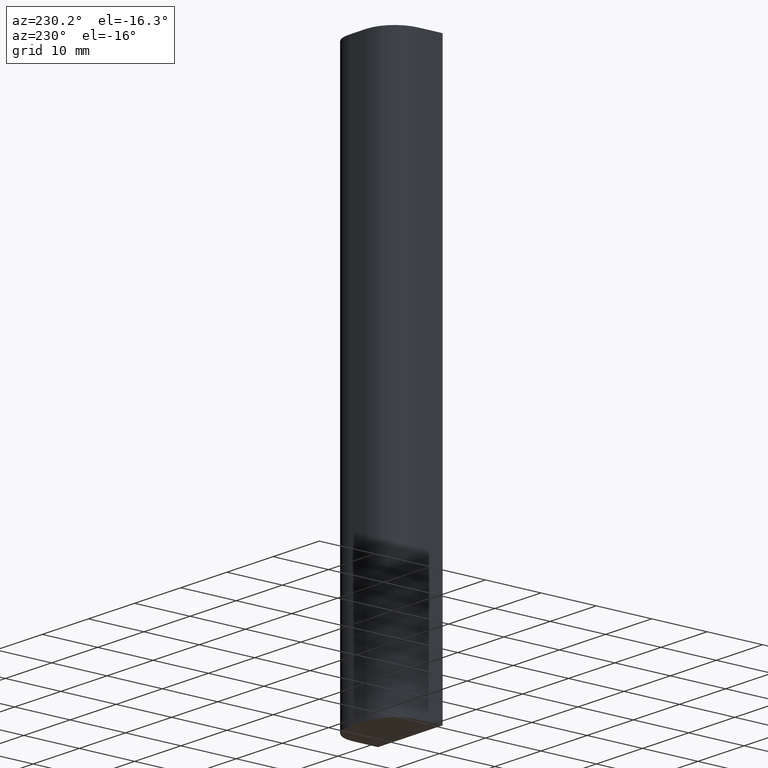
[diagram: clean part render]
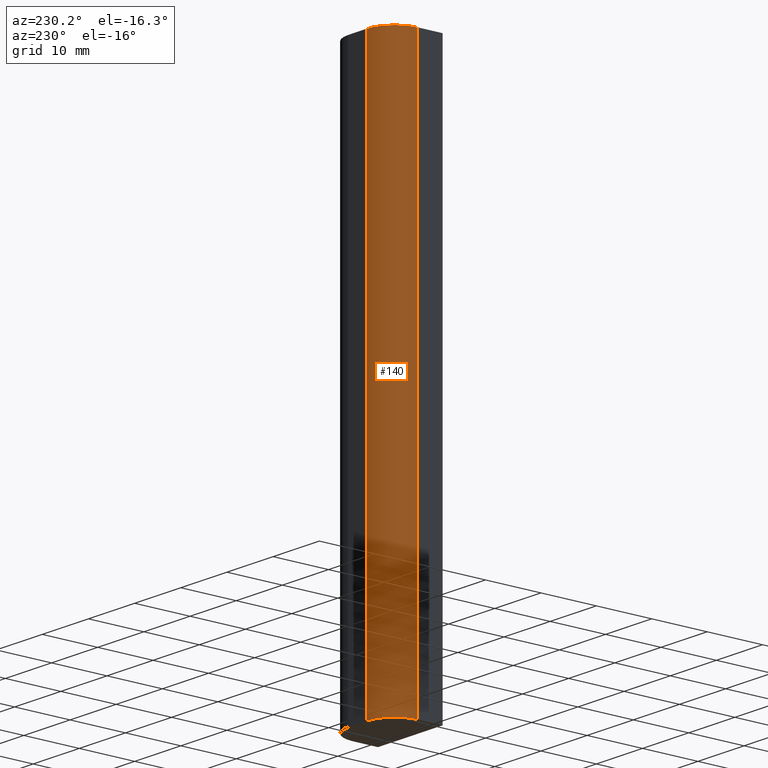
[diagram: same view with one face highlighted and labeled with its STEP entity id]
A machine part, auxiliary view. The second image highlights one B-rep face of the part: STEP entity #140.
In plain terms, the highlighted cylindrical surface (edge-blend (fillet) strip) has radius 5 mm, axis along (0, 0, 1).
Its self-contained STEP definition (entity closure, byte-faithful):
#16=CYLINDRICAL_SURFACE('',#170,5.);
#20=FACE_OUTER_BOUND('',#28,.T.);
#28=EDGE_LOOP('',(#106,#107,#108,#109));
#34=CIRCLE('',#167,5.);
#36=CIRCLE('',#171,5.);
#43=LINE('',#236,#57);
#45=LINE('',#241,#59);
#57=VECTOR('',#193,10.);
#59=VECTOR('',#199,10.);
#69=VERTEX_POINT('',#225);
#70=VERTEX_POINT('',#227);
#73=VERTEX_POINT('',#234);
#74=VERTEX_POINT('',#239);
#81=EDGE_CURVE('',#70,#69,#34,.T.);
#85=EDGE_CURVE('',#69,#73,#43,.T.);
#87=EDGE_CURVE('',#73,#74,#36,.T.);
#88=EDGE_CURVE('',#70,#74,#45,.T.);
#106=ORIENTED_EDGE('',*,*,#87,.T.);
#107=ORIENTED_EDGE('',*,*,#88,.F.);
#108=ORIENTED_EDGE('',*,*,#81,.T.);
#109=ORIENTED_EDGE('',*,*,#85,.T.);
#140=ADVANCED_FACE('',(#20),#16,.T.);
#167=AXIS2_PLACEMENT_3D('',#228,#185,#186);
#170=AXIS2_PLACEMENT_3D('',#238,#195,#196);
#171=AXIS2_PLACEMENT_3D('',#240,#197,#198);
#185=DIRECTION('center_axis',(0.,0.,1.));
#186=DIRECTION('ref_axis',(2.22044604925031E-16,1.,0.));
#193=DIRECTION('',(0.,0.,1.));
#195=DIRECTION('center_axis',(0.,0.,1.));
#196=DIRECTION('ref_axis',(2.22044604925031E-16,1.,0.));
#197=DIRECTION('center_axis',(0.,0.,-1.));
#198=DIRECTION('ref_axis',(2.22044604925031E-16,1.,0.));
#199=DIRECTION('',(0.,0.,1.));
#225=CARTESIAN_POINT('',(-7.,-0.25,-50.));
#227=CARTESIAN_POINT('',(-2.,4.75,-50.));
#228=CARTESIAN_POINT('Origin',(-2.,-0.25,-50.));
#234=CARTESIAN_POINT('',(-7.,-0.25,50.));
#236=CARTESIAN_POINT('',(-7.,-0.25,0.));
#238=CARTESIAN_POINT('Origin',(-2.,-0.25,0.));
#239=CARTESIAN_POINT('',(-2.,4.75,50.));
#240=CARTESIAN_POINT('Origin',(-2.,-0.25,50.));
#241=CARTESIAN_POINT('',(-2.,4.75,0.));